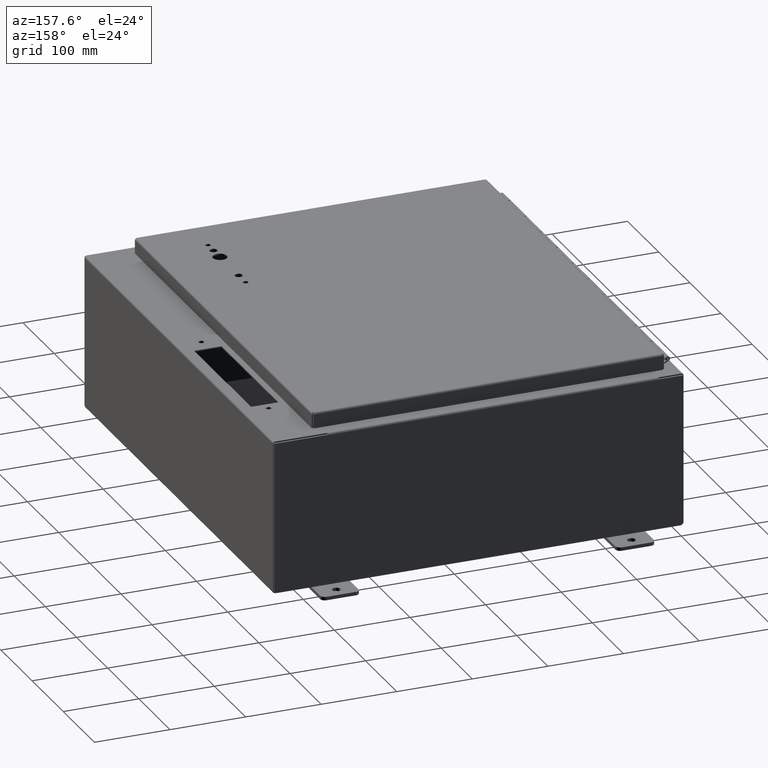
[diagram: clean part render]
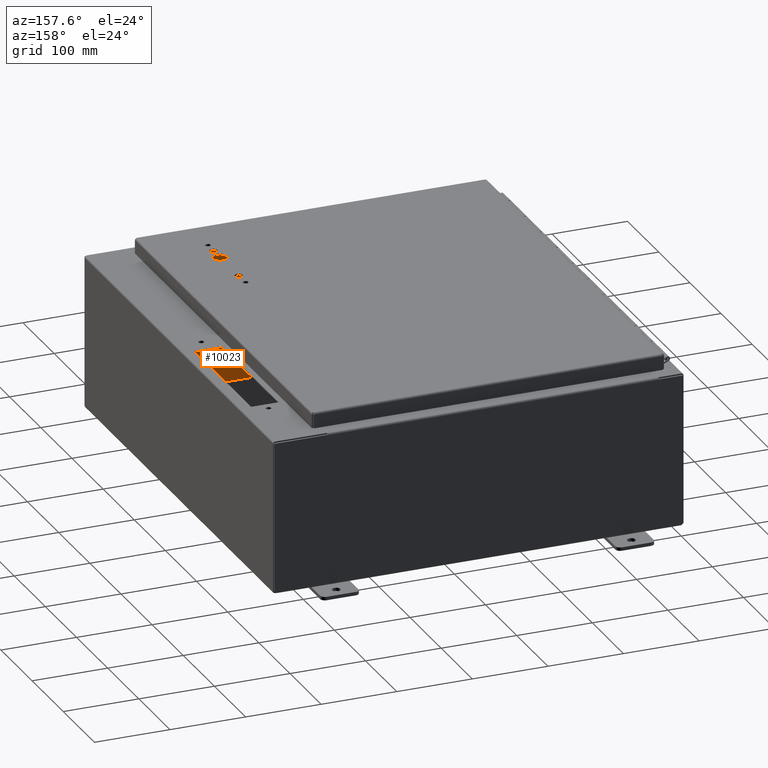
[diagram: same view with one face highlighted and labeled with its STEP entity id]
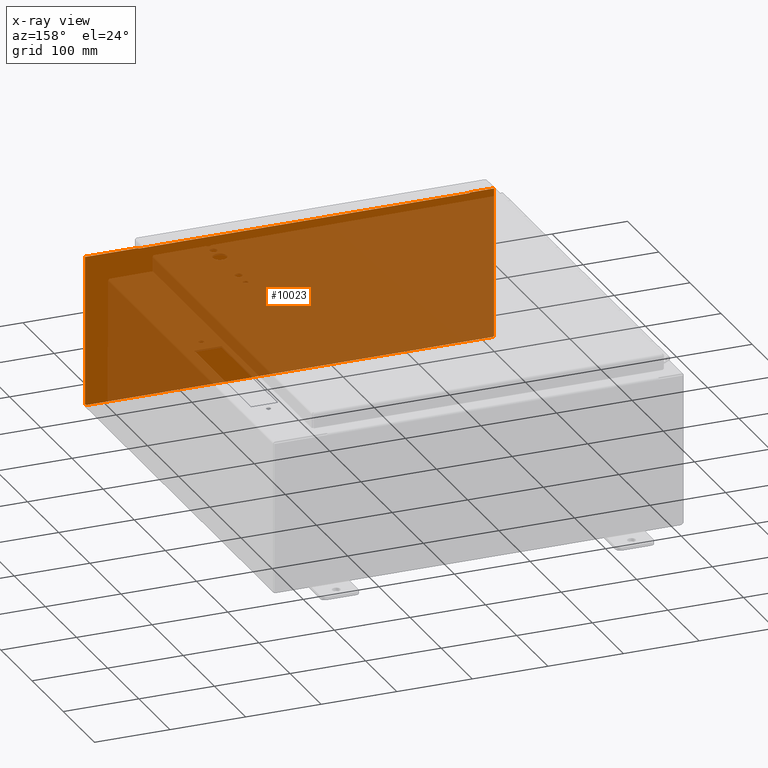
[diagram: x-ray of the same camera — body ghosted, the highlighted face saturated]
A machine part, auxiliary view. The second image highlights one B-rep face of the part: STEP entity #10023.
The next image is the same camera in x-ray: the body ghosted, the highlighted face saturated — about 86% of this face is hidden behind the body in this view.
In plain terms, the highlighted planar face has unit normal (-0, 1, 0).
Its self-contained STEP definition (entity closure, byte-faithful):
#434=CIRCLE($,#10697,0.07);
#435=CIRCLE($,#10698,0.07);
#1011=FACE_OUTER_BOUND($,#1585,.T.);
#1585=EDGE_LOOP($,(#6932,#6933,#6934,#6935,#6936,#6937,#6938,#6939,#6940,
#6941,#6942,#6943,#6944,#6945));
#2097=LINE($,#14421,#3062);
#2115=LINE($,#14470,#3080);
#2301=LINE($,#14905,#3266);
#2303=LINE($,#14911,#3268);
#2307=LINE($,#14918,#3272);
#2309=LINE($,#14922,#3274);
#2312=LINE($,#14928,#3277);
#2315=LINE($,#14934,#3280);
#2320=LINE($,#14943,#3285);
#2321=LINE($,#14946,#3286);
#2322=LINE($,#14950,#3287);
#2323=LINE($,#14953,#3288);
#3062=VECTOR($,#11646,0.000199999999999981);
#3080=VECTOR($,#11682,0.000199999999999981);
#3266=VECTOR($,#12078,17.253);
#3268=VECTOR($,#12084,0.0314499999999995);
#3272=VECTOR($,#12090,0.000199999999999981);
#3274=VECTOR($,#12094,0.00020000000000138);
#3277=VECTOR($,#12099,0.0314499999999995);
#3280=VECTOR($,#12104,1.2763);
#3285=VECTOR($,#12111,2.7763);
#3286=VECTOR($,#12114,7.79854986440823);
#3287=VECTOR($,#12117,21.1455336786487);
#3288=VECTOR($,#12120,7.79854986440823);
#4078=VERTEX_POINT($,#14418);
#4079=VERTEX_POINT($,#14420);
#4100=VERTEX_POINT($,#14467);
#4101=VERTEX_POINT($,#14469);
#4246=VERTEX_POINT($,#14909);
#4247=VERTEX_POINT($,#14910);
#4250=VERTEX_POINT($,#14921);
#4252=VERTEX_POINT($,#14927);
#4254=VERTEX_POINT($,#14933);
#4257=VERTEX_POINT($,#14941);
#4258=VERTEX_POINT($,#14945);
#4259=VERTEX_POINT($,#14947);
#4260=VERTEX_POINT($,#14949);
#4261=VERTEX_POINT($,#14951);
#5024=EDGE_CURVE($,#4079,#4078,#2097,.T.);
#5048=EDGE_CURVE($,#4101,#4100,#2115,.T.);
#5265=EDGE_CURVE($,#4078,#4101,#2301,.T.);
#5267=EDGE_CURVE($,#4246,#4247,#2303,.T.);
#5271=EDGE_CURVE($,#4247,#4079,#2307,.T.);
#5273=EDGE_CURVE($,#4100,#4250,#2309,.T.);
#5276=EDGE_CURVE($,#4250,#4252,#2312,.T.);
#5279=EDGE_CURVE($,#4254,#4246,#2315,.T.);
#5284=EDGE_CURVE($,#4252,#4257,#2320,.T.);
#5285=EDGE_CURVE($,#4258,#4257,#2321,.T.);
#5286=EDGE_CURVE($,#4258,#4259,#434,.T.);
#5287=EDGE_CURVE($,#4259,#4260,#2322,.T.);
#5288=EDGE_CURVE($,#4260,#4261,#435,.T.);
#5289=EDGE_CURVE($,#4261,#4254,#2323,.T.);
#6932=ORIENTED_EDGE($,*,*,#5024,.T.);
#6933=ORIENTED_EDGE($,*,*,#5265,.T.);
#6934=ORIENTED_EDGE($,*,*,#5048,.T.);
#6935=ORIENTED_EDGE($,*,*,#5273,.T.);
#6936=ORIENTED_EDGE($,*,*,#5276,.T.);
#6937=ORIENTED_EDGE($,*,*,#5284,.T.);
#6938=ORIENTED_EDGE($,*,*,#5285,.F.);
#6939=ORIENTED_EDGE($,*,*,#5286,.T.);
#6940=ORIENTED_EDGE($,*,*,#5287,.T.);
#6941=ORIENTED_EDGE($,*,*,#5288,.T.);
#6942=ORIENTED_EDGE($,*,*,#5289,.T.);
#6943=ORIENTED_EDGE($,*,*,#5279,.T.);
#6944=ORIENTED_EDGE($,*,*,#5267,.T.);
#6945=ORIENTED_EDGE($,*,*,#5271,.T.);
#9178=PLANE($,#10696);
#10023=ADVANCED_FACE($,(#1011),#9178,.T.);
#10696=AXIS2_PLACEMENT_3D($,#14944,#12112,#12113);
#10697=AXIS2_PLACEMENT_3D($,#14948,#12115,#12116);
#10698=AXIS2_PLACEMENT_3D($,#14952,#12118,#12119);
#11646=DIRECTION($,(0.,-2.82762664738643E-016,1.));
#11682=DIRECTION($,(0.,2.82762664738643E-016,-1.));
#12078=DIRECTION($,(1.,9.89349353973796E-033,0.));
#12084=DIRECTION($,(0.,2.82762664738643E-016,-1.));
#12090=DIRECTION($,(1.,9.89349353973796E-033,0.));
#12094=DIRECTION($,(1.,9.89349353973796E-033,0.));
#12099=DIRECTION($,(0.,-2.82762664738643E-016,1.));
#12104=DIRECTION($,(1.,0.,0.));
#12111=DIRECTION($,(1.,0.,0.));
#12112=DIRECTION('center_axis',(-9.89349353973796E-033,1.,2.82762664738643E-016));
#12113=DIRECTION('ref_axis',(1.,0.,0.));
#12114=DIRECTION($,(0.,-2.22044604925031E-016,1.));
#12115=DIRECTION('center_axis',(9.89349353973796E-033,-1.,-2.82762664738643E-016));
#12116=DIRECTION('ref_axis',(1.,0.,0.));
#12117=DIRECTION($,(-1.,-9.89349353973796E-033,-2.80259862415072E-048));
#12118=DIRECTION('center_axis',(9.89349353973796E-033,-1.,-2.82762664738643E-016));
#12119=DIRECTION('ref_axis',(1.,0.,0.));
#12120=DIRECTION($,(0.,-2.22044604925031E-016,1.));
#14418=CARTESIAN_POINT('',(1.3135,0.0739999999999978,7.89475));
#14420=CARTESIAN_POINT('',(1.3135,0.0739999999999978,7.89455));
#14421=CARTESIAN_POINT($,(1.3135,0.0739999999999983,5.93351653944229));
#14467=CARTESIAN_POINT('',(18.5665,0.0739999999999978,7.89455));
#14469=CARTESIAN_POINT('',(18.5665,0.0739999999999978,7.89475));
#14470=CARTESIAN_POINT($,(18.5665,0.0739999999999983,5.94924153944229));
#14905=CARTESIAN_POINT($,(14.62825,0.0739999999999978,7.89475));
#14909=CARTESIAN_POINT('',(1.3133,0.0739999999999978,7.926));
#14910=CARTESIAN_POINT('',(1.3133,0.0739999999999978,7.89455));
#14911=CARTESIAN_POINT($,(1.3133,0.0739999999999983,5.94924153944229));
#14918=CARTESIAN_POINT($,(6.00165,0.0739999999999978,7.89455));
#14921=CARTESIAN_POINT('',(18.5667,0.0739999999999978,7.89455));
#14922=CARTESIAN_POINT($,(14.62825,0.0739999999999978,7.89455));
#14927=CARTESIAN_POINT('',(18.5667,0.0739999999999978,7.926));
#14928=CARTESIAN_POINT($,(18.5667,0.0739999999999983,5.93351653944229));
#14933=CARTESIAN_POINT('',(0.0370000000000008,0.0739999999999978,7.926));
#14934=CARTESIAN_POINT($,(0.0370000000000008,0.0739999999999978,7.926));
#14941=CARTESIAN_POINT('',(21.343,0.0739999999999978,7.926));
#14943=CARTESIAN_POINT($,(0.0370000000000008,0.0739999999999978,7.926));
#14944=CARTESIAN_POINT('Origin',(10.69,0.0739999999999989,3.97248307888458));
#14945=CARTESIAN_POINT('',(21.343,0.074,0.12745013559177));
#14946=CARTESIAN_POINT($,(21.343,0.074,-0.0673176844616873));
#14947=CARTESIAN_POINT('',(21.2627668393244,0.074,0.10525));
#14948=CARTESIAN_POINT('Origin',(21.3178919211154,0.074,0.0621080788845781));
#14949=CARTESIAN_POINT('',(0.117233160675635,0.074,0.10525));
#14950=CARTESIAN_POINT($,(10.69,0.074,0.10525));
#14951=CARTESIAN_POINT('',(0.0369999999999994,0.074,0.127450135591769));
#14952=CARTESIAN_POINT('Origin',(0.0621080788845781,0.074,0.0621080788845781));
#14953=CARTESIAN_POINT($,(0.0369999999999994,0.074,-0.0673176844616873));